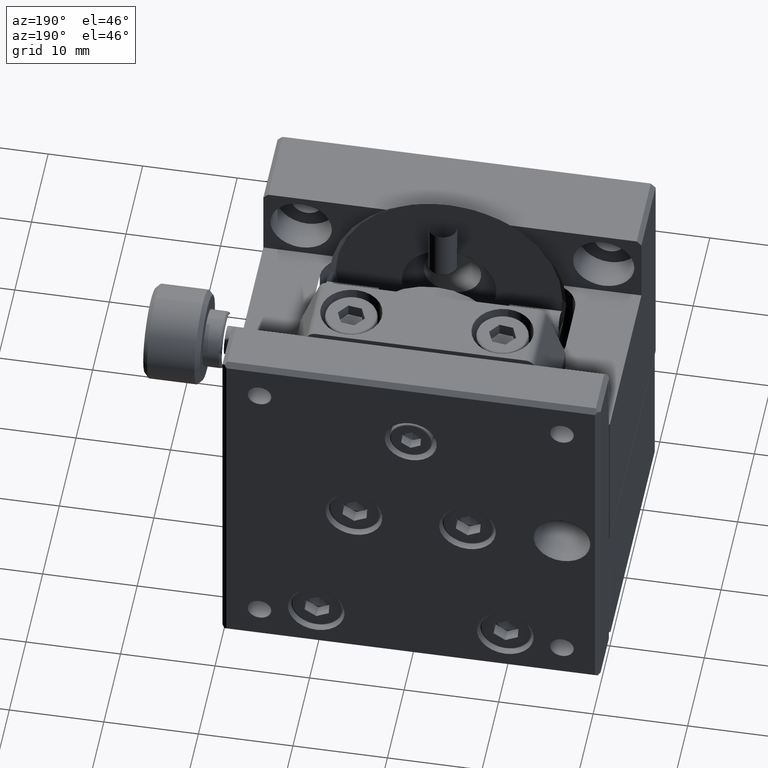
[diagram: clean part render]
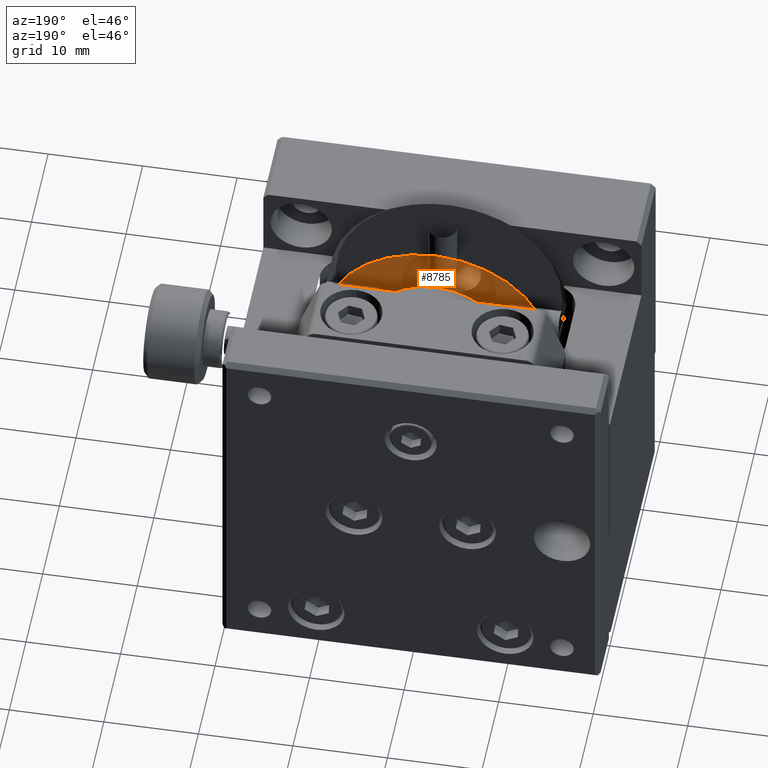
[diagram: same view with one face highlighted and labeled with its STEP entity id]
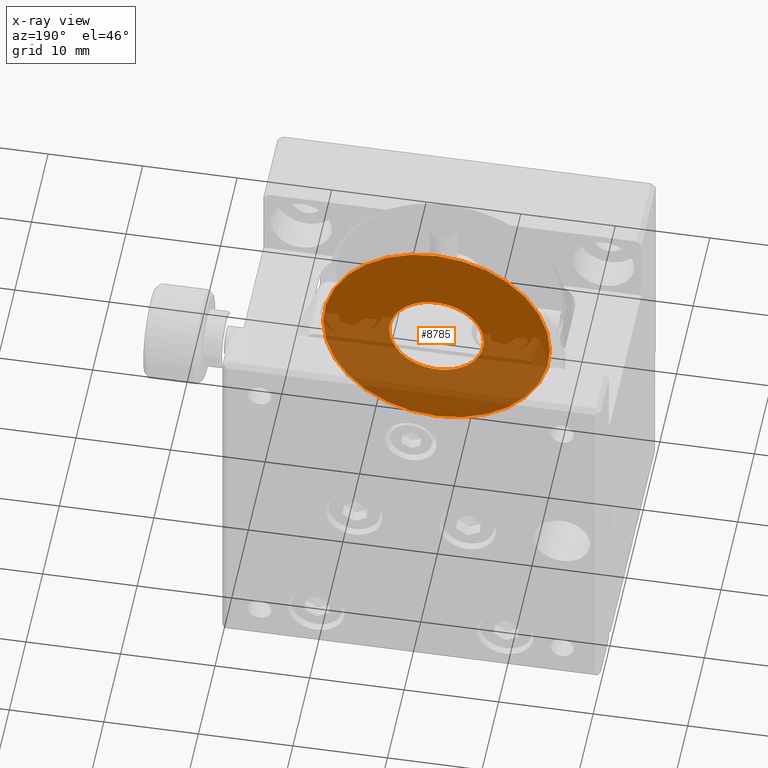
[diagram: x-ray of the same camera — body ghosted, the highlighted face saturated]
A machine part, auxiliary view. The second image highlights one B-rep face of the part: STEP entity #8785.
The next image is the same camera in x-ray: the body ghosted, the highlighted face saturated — about 53% of this face is hidden behind the body in this view.
In plain terms, the highlighted planar face has unit normal (0, -1, -0).
Its self-contained STEP definition (entity closure, byte-faithful):
#113 = FACE_BOUND ( 'NONE', #411, .T. ) ;
#221 = CARTESIAN_POINT ( 'NONE',  ( 0.6354631741815894852, -9.500000000000001776, -12.99993259599039597 ) ) ;
#283 = CARTESIAN_POINT ( 'NONE',  ( -1.318087882505005970, -9.500000000000000000, -12.82817184585704773 ) ) ;
#400 = CARTESIAN_POINT ( 'NONE',  ( 4.663454665737071458, -9.500000000000000000, -9.803492619431152022 ) ) ;
#411 = EDGE_LOOP ( 'NONE', ( #3293, #5328 ) ) ;
#520 = CARTESIAN_POINT ( 'NONE',  ( -4.972175614027626978, -9.500000000000005329, -8.609273996788017413 ) ) ;
#540 = CARTESIAN_POINT ( 'NONE',  ( 4.889020966873922625, -9.500000000000001776, -6.951012908738380958 ) ) ;
#595 = CARTESIAN_POINT ( 'NONE',  ( -4.482245396406618454, -9.500000000000001776, -5.772924521701626510 ) ) ;
#634 = CARTESIAN_POINT ( 'NONE',  ( -4.277356379083547822, -9.500000000000001776, -10.59478177674000854 ) ) ;
#651 = EDGE_CURVE ( 'NONE', #6724, #1940, #11704, .T. ) ;
#656 = CARTESIAN_POINT ( 'NONE',  ( 0.3177315870901009087, -9.500000000000000000, -2.999966297995454667 ) ) ;
#730 = VERTEX_POINT ( 'NONE', #3657 ) ;
#774 = CARTESIAN_POINT ( 'NONE',  ( 4.708581655926740162, -9.500000000000001776, -6.310128961001736592 ) ) ;
#939 = ORIENTED_EDGE ( 'NONE', *, *, #11570, .T. ) ;
#1026 = CARTESIAN_POINT ( 'NONE',  ( -5.000000000000004441, -9.500000000000001776, -8.000000000000001776 ) ) ;
#1112 = AXIS2_PLACEMENT_3D ( 'NONE', #1136, #4873, #4935 ) ;
#1136 = CARTESIAN_POINT ( 'NONE',  ( -1.475142795159904309E-15, -9.499999999999998224, -8.000000000000000000 ) ) ;
#1143 = CARTESIAN_POINT ( 'NONE',  ( 1.858936727242840981, -9.500000000000001776, -12.64162989535996573 ) ) ;
#1206 = CARTESIAN_POINT ( 'NONE',  ( 1.879725603316424021, -9.500000000000001776, -12.63325495879582405 ) ) ;
#1270 = CARTESIAN_POINT ( 'NONE',  ( -1.766426363816155920, -9.499999999999998224, -12.67763309198083377 ) ) ;
#1346 = CARTESIAN_POINT ( 'NONE',  ( -4.663454665737069682, -9.500000000000003553, -6.196507380568917256 ) ) ;
#1442 = CARTESIAN_POINT ( 'NONE',  ( -4.858224524122348953, -9.500000000000001776, -9.187172969260975819 ) ) ;
#1460 = CARTESIAN_POINT ( 'NONE',  ( 4.584313881982571282, -9.500000000000001776, -6.003517673454703107 ) ) ;
#1518 = CARTESIAN_POINT ( 'NONE',  ( -2.376884631706978279, -9.500000000000000000, -3.595364010020403178 ) ) ;
#1574 = CARTESIAN_POINT ( 'NONE',  ( 4.909020581402868899, -9.499999999999996447, -7.050315720539146902 ) ) ;
#1699 = CARTESIAN_POINT ( 'NONE',  ( 3.291682447311844673, -9.499999999999998224, -4.220667153212453115 ) ) ;
#1940 = VERTEX_POINT ( 'NONE', #7270 ) ;
#2004 = CARTESIAN_POINT ( 'NONE',  ( 3.018147385779655689, -9.500000000000003553, -11.98731338068023256 ) ) ;
#2066 = CARTESIAN_POINT ( 'NONE',  ( 4.999999999999999112, -9.500000000000000000, -8.000000000000000000 ) ) ;
#2127 = CARTESIAN_POINT ( 'NONE',  ( 3.413634435505458420, -9.500000000000003553, -11.65745963524348205 ) ) ;
#2187 = CARTESIAN_POINT ( 'NONE',  ( 3.222274190309120989, -9.499999999999998224, -11.83008438849659072 ) ) ;
#2357 = CARTESIAN_POINT ( 'NONE',  ( -3.987313380676832164, -9.500000000000003553, -11.01814738578267594 ) ) ;
#2439 = CARTESIAN_POINT ( 'NONE',  ( 1.580482308446100603, -9.499999999999998224, -3.255040134449408651 ) ) ;
#2478 = CARTESIAN_POINT ( 'NONE',  ( -2.663890361900581816, -9.500000000000000000, -12.23214220294317300 ) ) ;
#2498 = CARTESIAN_POINT ( 'NONE',  ( 3.657459635243180962, -9.499999999999998224, -4.586365564494667701 ) ) ;
#2518 = PLANE ( 'NONE',  #4795 ) ;
#2537 = CARTESIAN_POINT ( 'NONE',  ( -5.000000000000005329, -9.500000000000005329, -8.306002242767778654 ) ) ;
#2557 = CARTESIAN_POINT ( 'NONE',  ( 2.227075478298515154, -9.500000000000001776, -3.517754603593640894 ) ) ;
#2620 = CARTESIAN_POINT ( 'NONE',  ( 0.7860894708838518374, -9.500000000000001776, -3.043823333328027125 ) ) ;
#2978 = CARTESIAN_POINT ( 'NONE',  ( 4.360549651258329718, -9.500000000000001776, -10.44808808539389666 ) ) ;
#3043 = CARTESIAN_POINT ( 'NONE',  ( 2.376884631707739892, -9.500000000000000000, -12.40463598997909500 ) ) ;
#3161 = CARTESIAN_POINT ( 'NONE',  ( 2.112177141278677617, -9.500000000000001776, -12.53337377807345376 ) ) ;
#3283 = CARTESIAN_POINT ( 'NONE',  ( -3.657459635241004037, -9.500000000000003553, -11.41363443550765844 ) ) ;
#3293 = ORIENTED_EDGE ( 'NONE', *, *, #651, .T. ) ;
#3338 = CARTESIAN_POINT ( 'NONE',  ( -4.584313881981486816, -9.500000000000003553, -9.996482326547807773 ) ) ;
#3358 = CARTESIAN_POINT ( 'NONE',  ( -2.112177141278110959, -9.500000000000000000, -3.466626221926175422 ) ) ;
#3418 = CARTESIAN_POINT ( 'NONE',  ( 3.024682387029667741, -9.500000000000001776, -4.003681031309549887 ) ) ;
#3460 = CARTESIAN_POINT ( 'NONE',  ( -4.088711428562830541, -9.500000000000003553, -10.87922583624346373 ) ) ;
#3480 = CARTESIAN_POINT ( 'NONE',  ( -3.018147385776353442, -9.500000000000001776, -4.012686619317610948 ) ) ;
#3538 = CARTESIAN_POINT ( 'NONE',  ( 2.663890361899721171, -9.500000000000001776, -3.767857797056039626 ) ) ;
#3598 = CARTESIAN_POINT ( 'NONE',  ( -3.996318968688348683, -9.500000000000001776, -4.975317612967392833 ) ) ;
#3648 = ORIENTED_EDGE ( 'NONE', *, *, #4089, .T. ) ;
#3657 = CARTESIAN_POINT ( 'NONE',  ( -12.00000000000000888, -9.500000000000001776, -7.999999999999998224 ) ) ;
#4045 = CARTESIAN_POINT ( 'NONE',  ( -5.000000000000005329, -9.500000000000001776, -7.682183257688600442 ) ) ;
#4082 = CARTESIAN_POINT ( 'NONE',  ( 5.000000000000000888, -9.500000000000001776, -8.317816742311938683 ) ) ;
#4089 = EDGE_CURVE ( 'NONE', #730, #7717, #8243, .T. ) ;
#4140 = CARTESIAN_POINT ( 'NONE',  ( 4.656705834973109859, -9.500000000000001776, -9.820855331516538556 ) ) ;
#4277 = CARTESIAN_POINT ( 'NONE',  ( 1.710778326450076658, -9.499999999999998224, -3.301448517077085754 ) ) ;
#4316 = CARTESIAN_POINT ( 'NONE',  ( -1.803482141347300116, -9.500000000000000000, -12.66345881266344442 ) ) ;
#4337 = CARTESIAN_POINT ( 'NONE',  ( -3.779332846792105904, -9.500000000000001776, -4.708317552691881680 ) ) ;
#4376 = CARTESIAN_POINT ( 'NONE',  ( -4.913048793836325423, -9.500000000000000000, -8.928599091140267063 ) ) ;
#4396 = CARTESIAN_POINT ( 'NONE',  ( 4.999999999999999112, -9.499999999999998224, -7.693997757226646250 ) ) ;
#4437 = CARTESIAN_POINT ( 'NONE',  ( -4.617333232621218642, -9.500000000000003553, -9.918852728412975495 ) ) ;
#4475 = CARTESIAN_POINT ( 'NONE',  ( 12.50000000000000355, -9.499999999999998224, -7.999999999999996447 ) ) ;
#4514 = CARTESIAN_POINT ( 'NONE',  ( 4.999999999999999112, -9.500000000000000000, -8.000000000000000000 ) ) ;
#4795 = AXIS2_PLACEMENT_3D ( 'NONE', #4475, #11938, #7301 ) ;
#4873 = DIRECTION ( 'NONE',  ( 3.469446951953611724E-16, -1.000000000000000000, 9.629649721936163939E-32 ) ) ;
#4935 = DIRECTION ( 'NONE',  ( 1.000000000000000000, 2.891205793294676847E-16, 0.000000000000000000 ) ) ;
#4944 = CARTESIAN_POINT ( 'NONE',  ( -0.3177315870907977957, -9.500000000000001776, -13.00003370200480646 ) ) ;
#5179 = CARTESIAN_POINT ( 'NONE',  ( -5.000000000000004441, -9.500000000000001776, -8.000000000000001776 ) ) ;
#5197 = CARTESIAN_POINT ( 'NONE',  ( -2.594781776737604240, -9.500000000000000000, -3.722643620915898399 ) ) ;
#5256 = CARTESIAN_POINT ( 'NONE',  ( -4.232142202944489284, -9.500000000000001776, -5.336109638101012465 ) ) ;
#5313 = CARTESIAN_POINT ( 'NONE',  ( 4.913048793836323647, -9.500000000000001776, -7.071400908860083767 ) ) ;
#5328 = ORIENTED_EDGE ( 'NONE', *, *, #9473, .T. ) ;
#5417 = EDGE_LOOP ( 'NONE', ( #939, #3648 ) ) ;
#5437 = CARTESIAN_POINT ( 'NONE',  ( -4.275615982597577691, -9.500000000000001776, -5.406490974998415133 ) ) ;
#5746 = CARTESIAN_POINT ( 'NONE',  ( 2.806682262019549068, -9.500000000000001776, -12.13878814459798150 ) ) ;
#5809 = CARTESIAN_POINT ( 'NONE',  ( 2.594781776738039447, -9.499999999999998224, -12.27735637908381605 ) ) ;
#5864 = CARTESIAN_POINT ( 'NONE',  ( 1.977199857424054796, -9.500000000000000000, -12.59280389929976351 ) ) ;
#5927 = CARTESIAN_POINT ( 'NONE',  ( -1.580482308446633732, -9.500000000000000000, -12.74495986555079163 ) ) ;
#6105 = CARTESIAN_POINT ( 'NONE',  ( -4.786759935985648085, -9.500000000000001776, -9.460586871667750586 ) ) ;
#6126 = CARTESIAN_POINT ( 'NONE',  ( -0.6354631741802123646, -9.500000000000003553, -3.000067404009088889 ) ) ;
#6187 = CARTESIAN_POINT ( 'NONE',  ( 1.803482141347211964, -9.499999999999998224, -3.336541187336585335 ) ) ;
#6226 = CARTESIAN_POINT ( 'NONE',  ( -4.909020581403095385, -9.500000000000001776, -8.949684279460351277 ) ) ;
#6243 = CARTESIAN_POINT ( 'NONE',  ( 4.786759935984023606, -9.499999999999998224, -6.539413128328641633 ) ) ;
#6285 = CARTESIAN_POINT ( 'NONE',  ( -1.997419278151378874, -9.500000000000003553, -12.58682686802444017 ) ) ;
#6305 = CARTESIAN_POINT ( 'NONE',  ( 3.987313380679827102, -9.499999999999998224, -4.981852614220516173 ) ) ;
#6366 = CARTESIAN_POINT ( 'NONE',  ( 4.088711428564734796, -9.500000000000003553, -5.120774163758569308 ) ) ;
#6406 = B_SPLINE_CURVE_WITH_KNOTS ( 'NONE', 3,
 ( #2066, #4082, #7708, #8803, #6793, #9547, #10578, #400, #4140, #7826, #11371, #2978, #6728, #6972, #11547, #7884, #2127, #2187, #2004, #10458, #5746, #5809, #3043, #3161, #5864, #9606, #1206, #1143, #8629, #221, #4944, #8691, #283, #5927, #9665, #1270, #4316, #7946, #6285, #11668, #10925, #10751, #2478, #10695, #10873, #3283, #9780, #2357, #3460, #9038, #634, #8122, #7028, #3338, #4437, #8183, #9840, #6105, #1442, #7144, #10011, #6226, #4376, #520, #2537, #5179 ),
 .UNSPECIFIED., .F., .F.,
 ( 4, 1, 1, 1, 1, 2, 2, 1, 2, 2, 2, 1, 2, 2, 1, 1, 1, 2, 2, 2, 1, 1, 1, 1, 2, 2, 1, 2, 2, 2, 1, 2, 2, 1, 1, 2, 2, 1, 1, 1, 2, 2, 4 ),
 ( 0.000000000000000000, 0.06250000000000169309, 0.09375000000000252576, 0.1093750000000029282, 0.1171875000000033307, 0.1210937500000035250, 0.1250000000000037192, 0.1562500000000047184, 0.1718750000000052458, 0.1875000000000057732, 0.2500000000000072720, 0.2812500000000079381, 0.2968750000000082712, 0.3125000000000086042, 0.3437500000000092149, 0.3593750000000093814, 0.3671875000000094369, 0.3710937500000094369, 0.3750000000000094369, 0.5000000000000061062, 0.5625000000000044409, 0.5937500000000036637, 0.6093750000000033307, 0.6171875000000031086, 0.6210937500000031086, 0.6250000000000029976, 0.6562500000000031086, 0.6718750000000029976, 0.6875000000000028866, 0.7500000000000027756, 0.7812500000000027756, 0.7968750000000027756, 0.8125000000000028866, 0.8437500000000028866, 0.8593750000000028866, 0.8671875000000027756, 0.8750000000000025535, 0.9062500000000024425, 0.9218750000000022204, 0.9296875000000021094, 0.9335937500000019984, 0.9375000000000018874, 1.000000000000000000 ),
 .UNSPECIFIED. ) ;
#6724 = VERTEX_POINT ( 'NONE', #1026 ) ;
#6728 = CARTESIAN_POINT ( 'NONE',  ( 4.275615982597444464, -9.500000000000000000, -10.59350902500166569 ) ) ;
#6760 = DIRECTION ( 'NONE',  ( 1.000000000000000000, 2.891205793294676847E-16, 0.000000000000000000 ) ) ;
#6793 = CARTESIAN_POINT ( 'NONE',  ( 4.744934062453356916, -9.499999999999998224, -9.580547505412816633 ) ) ;
#6972 = CARTESIAN_POINT ( 'NONE',  ( 4.232142202943562026, -9.500000000000001776, -10.66389036190033224 ) ) ;
#7028 = CARTESIAN_POINT ( 'NONE',  ( -4.533373778073097604, -9.500000000000003553, -10.11217714128126310 ) ) ;
#7102 = CARTESIAN_POINT ( 'NONE',  ( -1.879725603316321880, -9.499999999999996447, -3.366745041204113775 ) ) ;
#7144 = CARTESIAN_POINT ( 'NONE',  ( -4.889020966874642049, -9.500000000000003553, -9.048987091260038085 ) ) ;
#7163 = CARTESIAN_POINT ( 'NONE',  ( 4.404635989980881128, -9.500000000000000000, -5.623115368294011596 ) ) ;
#7220 = CARTESIAN_POINT ( 'NONE',  ( -1.249651805935679594, -9.500000000000001776, -3.117086976217274152 ) ) ;
#7270 = CARTESIAN_POINT ( 'NONE',  ( 4.999999999999999112, -9.500000000000000000, -8.000000000000000000 ) ) ;
#7283 = CARTESIAN_POINT ( 'NONE',  ( 4.277356379084837457, -9.500000000000005329, -5.405218223262965083 ) ) ;
#7301 = DIRECTION ( 'NONE',  ( 1.000000000000000000, 1.577738873888089097E-16, 0.000000000000000000 ) ) ;
#7343 = CARTESIAN_POINT ( 'NONE',  ( -1.977199857423720841, -9.500000000000001776, -3.407196100700023766 ) ) ;
#7708 = CARTESIAN_POINT ( 'NONE',  ( 4.956117688164018098, -9.499999999999998224, -8.786238492522059573 ) ) ;
#7717 = VERTEX_POINT ( 'NONE', #10152 ) ;
#7791 = CARTESIAN_POINT ( 'NONE',  ( -4.956117688164024315, -9.500000000000003553, -7.213761507478882784 ) ) ;
#7826 = CARTESIAN_POINT ( 'NONE',  ( 4.586826868024473924, -9.500000000000001776, -9.997419278152005262 ) ) ;
#7845 = CARTESIAN_POINT ( 'NONE',  ( -5.000000000000004441, -9.500000000000001776, -8.000000000000001776 ) ) ;
#7884 = CARTESIAN_POINT ( 'NONE',  ( 3.779332846787291977, -9.500000000000001776, -11.29168244731126514 ) ) ;
#7946 = CARTESIAN_POINT ( 'NONE',  ( -1.820855331516614273, -9.500000000000000000, -12.65670583497311341 ) ) ;
#8022 = CARTESIAN_POINT ( 'NONE',  ( 4.533373778074787808, -9.500000000000000000, -5.887822858722639552 ) ) ;
#8082 = CARTESIAN_POINT ( 'NONE',  ( 2.448088085393886448, -9.500000000000001776, -3.639450348741667174 ) ) ;
#8122 = CARTESIAN_POINT ( 'NONE',  ( -4.404635989978623378, -9.500000000000001776, -10.37688463171118514 ) ) ;
#8144 = CARTESIAN_POINT ( 'NONE',  ( 4.858224524121131260, -9.500000000000000000, -6.812827030736309908 ) ) ;
#8183 = CARTESIAN_POINT ( 'NONE',  ( -4.634031467658272341, -9.500000000000000000, -9.878124175012658270 ) ) ;
#8202 = CARTESIAN_POINT ( 'NONE',  ( -3.222274190304914132, -9.500000000000001776, -4.169915611500658592 ) ) ;
#8243 = CIRCLE ( 'NONE', #9810, 12.00000000000000711 ) ;
#8358 = CIRCLE ( 'NONE', #1112, 12.00000000000000711 ) ;
#8600 = DIRECTION ( 'NONE',  ( 3.469446951953611724E-16, -1.000000000000000000, 9.629649721936163939E-32 ) ) ;
#8629 = CARTESIAN_POINT ( 'NONE',  ( 1.249651805938056359, -9.500000000000001776, -12.88291302378220848 ) ) ;
#8691 = CARTESIAN_POINT ( 'NONE',  ( -0.7860894708850630908, -9.499999999999998224, -12.95617666667242673 ) ) ;
#8777 = CARTESIAN_POINT ( 'NONE',  ( -1.475142795159904309E-15, -9.499999999999998224, -8.000000000000000000 ) ) ;
#8785 = ADVANCED_FACE ( 'NONE', ( #113, #10910 ), #2518, .T. ) ;
#8803 = CARTESIAN_POINT ( 'NONE',  ( 4.828127611975739697, -9.500000000000003553, -9.318199648732752749 ) ) ;
#8822 = CARTESIAN_POINT ( 'NONE',  ( -4.656705834973095648, -9.500000000000001776, -6.179144668483453451 ) ) ;
#8943 = CARTESIAN_POINT ( 'NONE',  ( 4.617333232621820827, -9.500000000000001776, -6.081147271588418057 ) ) ;
#9000 = CARTESIAN_POINT ( 'NONE',  ( 3.830084388496079573, -9.500000000000001776, -4.777725809691095726 ) ) ;
#9038 = CARTESIAN_POINT ( 'NONE',  ( -4.138788144598119167, -9.500000000000005329, -10.80668226201857607 ) ) ;
#9057 = CARTESIAN_POINT ( 'NONE',  ( 4.972175614027622537, -9.500000000000001776, -7.390726003206403050 ) ) ;
#9117 = CARTESIAN_POINT ( 'NONE',  ( 4.634031467658501491, -9.500000000000003553, -6.121875824987861314 ) ) ;
#9173 = CARTESIAN_POINT ( 'NONE',  ( 4.138788144597469909, -9.500000000000001776, -5.193317737979948667 ) ) ;
#9473 = EDGE_CURVE ( 'NONE', #1940, #6724, #6406, .T. ) ;
#9547 = CARTESIAN_POINT ( 'NONE',  ( 4.698537659835110070, -9.500000000000003553, -9.710813253396533895 ) ) ;
#9606 = CARTESIAN_POINT ( 'NONE',  ( 1.918790263206335389, -9.500000000000000000, -12.61721564279227792 ) ) ;
#9665 = CARTESIAN_POINT ( 'NONE',  ( -1.710778326450361986, -9.500000000000000000, -12.69855148292302260 ) ) ;
#9743 = CARTESIAN_POINT ( 'NONE',  ( -4.677624995600772273, -9.500000000000001776, -6.233553178972644382 ) ) ;
#9780 = CARTESIAN_POINT ( 'NONE',  ( -3.830084388492271508, -9.500000000000001776, -11.22227419031296414 ) ) ;
#9810 = AXIS2_PLACEMENT_3D ( 'NONE', #8777, #8600, #6760 ) ;
#9840 = CARTESIAN_POINT ( 'NONE',  ( -4.708581655927672749, -9.500000000000003553, -9.689871038996198394 ) ) ;
#9859 = CARTESIAN_POINT ( 'NONE',  ( 1.766426363815986944, -9.500000000000000000, -3.322366908019226628 ) ) ;
#9917 = CARTESIAN_POINT ( 'NONE',  ( 2.593509025001655033, -9.500000000000001776, -3.724384017402552427 ) ) ;
#9973 = CARTESIAN_POINT ( 'NONE',  ( 4.901161759914598903, -9.500000000000000000, -7.010552340767461921 ) ) ;
#10011 = CARTESIAN_POINT ( 'NONE',  ( -4.901161759915025229, -9.500000000000000000, -8.989447659231585064 ) ) ;
#10093 = CARTESIAN_POINT ( 'NONE',  ( -3.413634435503055453, -9.500000000000001776, -4.342540364754952087 ) ) ;
#10152 = CARTESIAN_POINT ( 'NONE',  ( 12.00000000000000533, -9.499999999999994671, -8.000000000000000000 ) ) ;
#10458 = CARTESIAN_POINT ( 'NONE',  ( 2.879225836241538605, -9.500000000000001776, -12.08871142856499326 ) ) ;
#10578 = CARTESIAN_POINT ( 'NONE',  ( 4.677624995600774049, -9.500000000000003553, -9.766446821027486180 ) ) ;
#10598 = CARTESIAN_POINT ( 'NONE',  ( -4.744934062453363133, -9.500000000000003553, -6.419452494587591929 ) ) ;
#10656 = CARTESIAN_POINT ( 'NONE',  ( -4.828127611975744138, -9.500000000000003553, -6.681800351267952465 ) ) ;
#10695 = CARTESIAN_POINT ( 'NONE',  ( -3.024682387026245589, -9.499999999999998224, -11.99631896869359693 ) ) ;
#10751 = CARTESIAN_POINT ( 'NONE',  ( -2.593509025001117241, -9.500000000000000000, -12.27561598259741160 ) ) ;
#10832 = CARTESIAN_POINT ( 'NONE',  ( 1.318087882504096697, -9.500000000000000000, -3.171828154143291556 ) ) ;
#10873 = CARTESIAN_POINT ( 'NONE',  ( -3.291682447316208737, -9.500000000000001776, -11.77933284678290704 ) ) ;
#10891 = CARTESIAN_POINT ( 'NONE',  ( -2.879225836239436731, -9.500000000000000000, -3.911288571433632733 ) ) ;
#10910 = FACE_OUTER_BOUND ( 'NONE', #5417, .T. ) ;
#10925 = CARTESIAN_POINT ( 'NONE',  ( -2.448088085393036906, -9.500000000000001776, -12.36054965125828531 ) ) ;
#10944 = CARTESIAN_POINT ( 'NONE',  ( 1.820855331516534781, -9.500000000000001776, -3.343294165026887477 ) ) ;
#11006 = CARTESIAN_POINT ( 'NONE',  ( -4.586826868024625803, -9.500000000000003553, -6.002580721848085332 ) ) ;
#11069 = CARTESIAN_POINT ( 'NONE',  ( -1.858936727242920695, -9.500000000000001776, -3.358370104640051590 ) ) ;
#11371 = CARTESIAN_POINT ( 'NONE',  ( 4.482245396406354665, -9.500000000000001776, -10.22707547829852359 ) ) ;
#11547 = CARTESIAN_POINT ( 'NONE',  ( 3.996318968692027074, -9.500000000000000000, -11.02468238702725856 ) ) ;
#11565 = CARTESIAN_POINT ( 'NONE',  ( -4.698537659835114511, -9.500000000000001776, -6.289186746603689038 ) ) ;
#11570 = EDGE_CURVE ( 'NONE', #7717, #730, #8358, .T. ) ;
#11668 = CARTESIAN_POINT ( 'NONE',  ( -2.227075478297430244, -9.499999999999996447, -12.48224539640628805 ) ) ;
#11704 = B_SPLINE_CURVE_WITH_KNOTS ( 'NONE', 3,
 ( #7845, #4045, #7791, #10656, #10598, #11565, #9743, #1346, #8822, #11006, #595, #11741, #5437, #5256, #3598, #4337, #10093, #8202, #3480, #10891, #11979, #5197, #1518, #3358, #7343, #11800, #7102, #11069, #7220, #6126, #656, #2620, #10832, #2439, #4277, #9859, #6187, #10944, #11918, #2557, #8082, #9917, #3538, #3418, #1699, #2498, #9000, #6305, #6366, #9173, #7283, #7163, #8022, #1460, #8943, #9117, #774, #6243, #8144, #540, #9973, #1574, #5313, #9057, #4396, #4514 ),
 .UNSPECIFIED., .F., .F.,
 ( 4, 1, 1, 1, 1, 2, 2, 1, 2, 2, 2, 1, 2, 2, 1, 1, 1, 2, 2, 2, 1, 1, 1, 1, 2, 2, 1, 2, 2, 2, 1, 2, 2, 1, 1, 2, 2, 1, 1, 1, 2, 2, 4 ),
 ( 0.000000000000000000, 0.06249999999999834854, 0.09374999999999741873, 0.1093749999999969469, 0.1171874999999968220, 0.1210937499999968359, 0.1249999999999968636, 0.1562499999999969469, 0.1718749999999970302, 0.1874999999999971134, 0.2499999999999973910, 0.2812499999999975575, 0.2968749999999976685, 0.3124999999999977240, 0.3437499999999977796, 0.3593749999999977796, 0.3671874999999977240, 0.3710937499999977240, 0.3749999999999977240, 0.4999999999999978906, 0.5624999999999978906, 0.5937499999999980016, 0.6093749999999980016, 0.6171874999999980016, 0.6210937499999980016, 0.6249999999999980016, 0.6562499999999982236, 0.6718749999999982236, 0.6874999999999982236, 0.7499999999999981126, 0.7812499999999982236, 0.7968749999999982236, 0.8124999999999983347, 0.8437499999999982236, 0.8593749999999981126, 0.8671874999999981126, 0.8749999999999980016, 0.9062499999999980016, 0.9218749999999981126, 0.9296874999999981126, 0.9335937499999981126, 0.9374999999999981126, 1.000000000000000000 ),
 .UNSPECIFIED. ) ;
#11741 = CARTESIAN_POINT ( 'NONE',  ( -4.360549651258536663, -9.500000000000000000, -5.551911914606229459 ) ) ;
#11800 = CARTESIAN_POINT ( 'NONE',  ( -1.918790263206137992, -9.500000000000001776, -3.382784357207593740 ) ) ;
#11918 = CARTESIAN_POINT ( 'NONE',  ( 1.997419278151998157, -9.500000000000001776, -3.413173131975522967 ) ) ;
#11938 = DIRECTION ( 'NONE',  ( 1.577738873888089097E-16, -1.000000000000000000, -1.966745905215504139E-18 ) ) ;
#11979 = CARTESIAN_POINT ( 'NONE',  ( -2.806682262019770668, -9.500000000000001776, -3.861211855402164161 ) ) ;